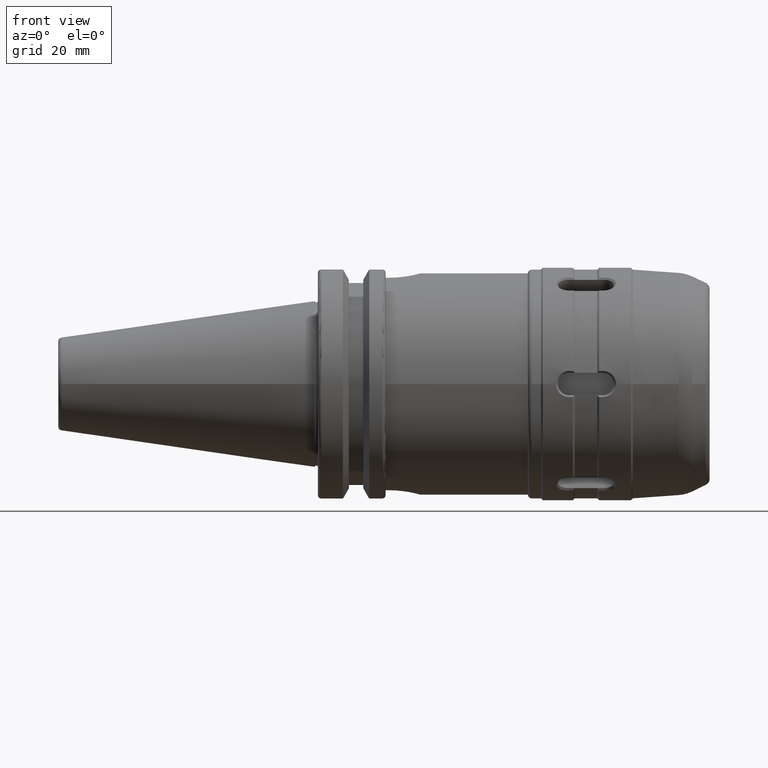
[diagram: clean part render]
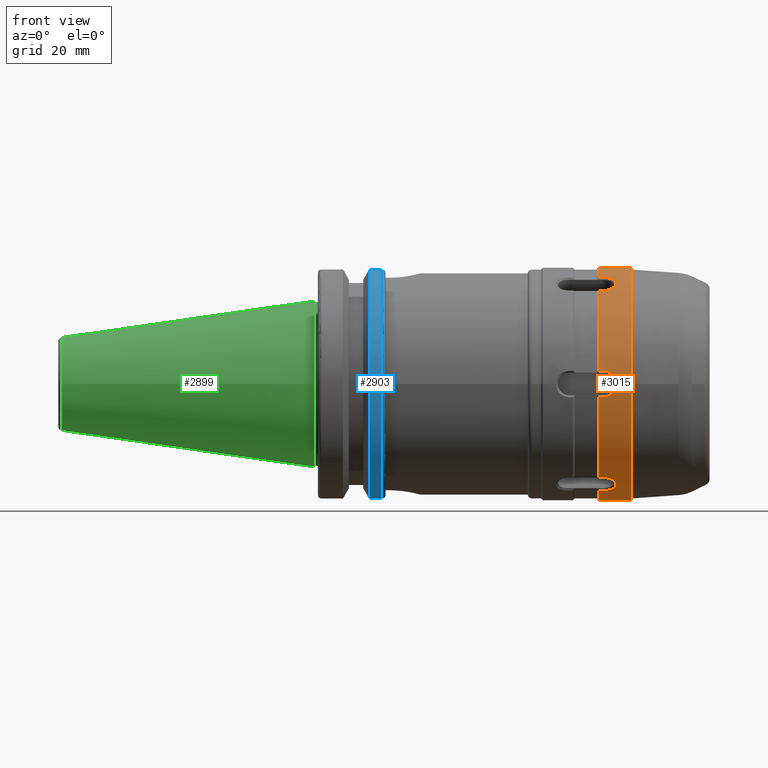
[diagram: same view with three faces highlighted in distinct colors, each labeled with its STEP entity id]
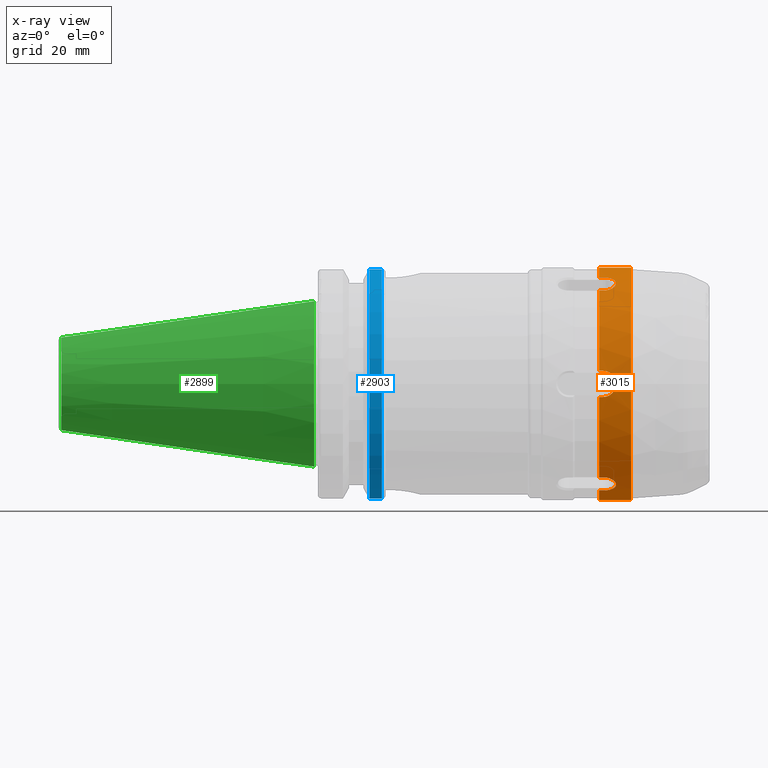
[diagram: x-ray of the same camera — body ghosted, the three highlighted faces saturated]
A machine part, front view with three faces highlighted in distinct colors.
The next image is the same camera in x-ray (body ghosted, the three faces saturated) — at least one of them is partly hidden behind the body in this view.
Their STEP definitions:

[orange] entity #3015 — the highlighted cylindrical surface (bore or boss wall) has radius 31 mm, axis along (1, 0, 0).
#394=FACE_OUTER_BOUND('',#580,.T.);
#580=EDGE_LOOP('',(#2691,#2692,#2693,#2694,#2695,#2696,#2697,#2698,#2699,
#2700,#2701,#2702,#2703,#2704,#2705,#2706,#2707,#2708,#2709,#2710,#2711,
#2712,#2713,#2714,#2715,#2716,#2717,#2718));
#672=CIRCLE('',#3244,31.);
#677=CIRCLE('',#3259,31.);
#683=CIRCLE('',#3275,31.);
#689=CIRCLE('',#3291,31.);
#695=CIRCLE('',#3307,31.);
#701=CIRCLE('',#3326,31.);
#708=CIRCLE('',#3351,31.);
#816=LINE('',#4736,#1019);
#818=LINE('',#4824,#1021);
#836=LINE('',#4994,#1039);
#838=LINE('',#5082,#1041);
#856=LINE('',#5234,#1059);
#858=LINE('',#5327,#1061);
#876=LINE('',#5484,#1079);
#878=LINE('',#5590,#1081);
#896=LINE('',#5742,#1099);
#898=LINE('',#5830,#1101);
#921=LINE('',#6035,#1124);
#923=LINE('',#6136,#1126);
#935=LINE('',#6231,#1138);
#1019=VECTOR('',#3740,10.);
#1021=VECTOR('',#3744,10.);
#1039=VECTOR('',#3792,10.);
#1041=VECTOR('',#3796,10.);
#1059=VECTOR('',#3844,10.);
#1061=VECTOR('',#3848,10.);
#1079=VECTOR('',#3896,10.);
#1081=VECTOR('',#3900,10.);
#1099=VECTOR('',#3948,10.);
#1101=VECTOR('',#3952,10.);
#1124=VECTOR('',#4043,10.);
#1126=VECTOR('',#4047,10.);
#1138=VECTOR('',#4081,31.);
#1170=B_SPLINE_CURVE_WITH_KNOTS('',3,(#4792,#4793,#4794,#4795,#4796,#4797,
#4798,#4799,#4800,#4801,#4802,#4803,#4804),.UNSPECIFIED.,.F.,.F.,(4,1,1,
1,1,1,1,1,1,1,4),(-4.79426917206454E-16,0.129236548668661,0.258473097337323,
0.290782234504488,0.323091371671653,0.355400508838819,0.516946194674646,
0.646182743343307,0.710801017677638,0.775419292011969,0.90465584068063),
 .UNSPECIFIED.);
#1174=B_SPLINE_CURVE_WITH_KNOTS('',3,(#5050,#5051,#5052,#5053,#5054,#5055,
#5056,#5057,#5058,#5059,#5060,#5061,#5062),.UNSPECIFIED.,.F.,.F.,(4,1,1,
1,1,1,1,1,1,1,4),(-4.30211422042248E-16,0.129236548668661,0.258473097337323,
0.290782234504488,0.323091371671654,0.355400508838819,0.516946194674646,
0.646182743343308,0.710801017677639,0.77541929201197,0.904655840680631),
 .UNSPECIFIED.);
#1178=B_SPLINE_CURVE_WITH_KNOTS('',3,(#5291,#5292,#5293,#5294,#5295,#5296,
#5297,#5298,#5299),.UNSPECIFIED.,.F.,.F.,(4,1,1,1,1,1,4),(-4.25109350697904E-17,
0.129236548668662,0.258473097337323,0.290782234504488,0.323091371671654,
0.355400508838819,0.452069356203931),.UNSPECIFIED.);
#1179=B_SPLINE_CURVE_WITH_KNOTS('',3,(#5300,#5301,#5302,#5303,#5304,#5305,
#5306,#5307),.UNSPECIFIED.,.F.,.F.,(4,1,1,1,1,4),(0.452069356203931,0.516946194674646,
0.646182743343307,0.710801017677638,0.775419292011969,0.90465584068063),
 .UNSPECIFIED.);
#1184=B_SPLINE_CURVE_WITH_KNOTS('',3,(#5552,#5553,#5554,#5555,#5556,#5557,
#5558,#5559,#5560,#5561,#5562,#5563,#5564,#5565,#5566,#5567),
 .UNSPECIFIED.,.F.,.F.,(4,1,1,1,1,1,1,1,1,1,1,1,1,4),(-9.15308593628442E-16,
0.129236548668661,0.177700254419409,0.258473097337322,0.290782234504488,
0.323091371671653,0.347323224547027,0.387709646005984,0.516946194674646,
0.581564469008977,0.605796321884351,0.646182743343307,0.775419292011969,
0.904655840680631),.UNSPECIFIED.);
#1188=B_SPLINE_CURVE_WITH_KNOTS('',3,(#5798,#5799,#5800,#5801,#5802,#5803,
#5804,#5805,#5806,#5807,#5808,#5809,#5810),.UNSPECIFIED.,.F.,.F.,(4,1,1,
1,1,1,1,1,1,1,4),(-4.44089209850063E-16,0.129236548668661,0.258473097337323,
0.290782234504488,0.323091371671653,0.355400508838819,0.516946194674646,
0.646182743343307,0.710801017677638,0.775419292011969,0.90465584068063),
 .UNSPECIFIED.);
#1193=B_SPLINE_CURVE_WITH_KNOTS('',3,(#6103,#6104,#6105,#6106,#6107,#6108,
#6109,#6110,#6111,#6112,#6113,#6114,#6115,#6116,#6117,#6118),
 .UNSPECIFIED.,.F.,.F.,(4,1,1,1,1,1,1,1,1,1,1,1,1,4),(-4.63841704051304E-16,
0.129236548668661,0.177700254419409,0.258473097337323,0.290782234504488,
0.323091371671654,0.347323224547028,0.387709646005984,0.516946194674646,
0.581564469008977,0.605796321884351,0.646182743343307,0.775419292011969,
0.904655840680631),.UNSPECIFIED.);
#1303=VERTEX_POINT('',#4727);
#1306=VERTEX_POINT('',#4734);
#1308=VERTEX_POINT('',#4790);
#1310=VERTEX_POINT('',#4820);
#1314=VERTEX_POINT('',#4837);
#1333=VERTEX_POINT('',#4985);
#1336=VERTEX_POINT('',#4992);
#1338=VERTEX_POINT('',#5048);
#1340=VERTEX_POINT('',#5078);
#1357=VERTEX_POINT('',#5225);
#1360=VERTEX_POINT('',#5232);
#1362=VERTEX_POINT('',#5288);
#1363=VERTEX_POINT('',#5290);
#1365=VERTEX_POINT('',#5323);
#1383=VERTEX_POINT('',#5475);
#1386=VERTEX_POINT('',#5482);
#1388=VERTEX_POINT('',#5550);
#1390=VERTEX_POINT('',#5586);
#1407=VERTEX_POINT('',#5733);
#1410=VERTEX_POINT('',#5740);
#1412=VERTEX_POINT('',#5796);
#1414=VERTEX_POINT('',#5826);
#1431=VERTEX_POINT('',#5978);
#1441=VERTEX_POINT('',#6033);
#1443=VERTEX_POINT('',#6101);
#1450=VERTEX_POINT('',#6229);
#1648=EDGE_CURVE('',#1306,#1303,#816,.T.);
#1650=EDGE_CURVE('',#1308,#1306,#1170,.T.);
#1653=EDGE_CURVE('',#1310,#1308,#818,.T.);
#1659=EDGE_CURVE('',#1310,#1314,#672,.T.);
#1690=EDGE_CURVE('',#1336,#1333,#836,.T.);
#1692=EDGE_CURVE('',#1338,#1336,#1174,.T.);
#1695=EDGE_CURVE('',#1340,#1338,#838,.T.);
#1697=EDGE_CURVE('',#1340,#1303,#677,.T.);
#1728=EDGE_CURVE('',#1360,#1357,#856,.T.);
#1730=EDGE_CURVE('',#1362,#1363,#1178,.T.);
#1731=EDGE_CURVE('',#1363,#1360,#1179,.T.);
#1734=EDGE_CURVE('',#1365,#1362,#858,.T.);
#1736=EDGE_CURVE('',#1365,#1333,#683,.T.);
#1768=EDGE_CURVE('',#1386,#1383,#876,.T.);
#1770=EDGE_CURVE('',#1388,#1386,#1184,.T.);
#1773=EDGE_CURVE('',#1390,#1388,#878,.T.);
#1775=EDGE_CURVE('',#1390,#1357,#689,.T.);
#1806=EDGE_CURVE('',#1410,#1407,#896,.T.);
#1808=EDGE_CURVE('',#1412,#1410,#1188,.T.);
#1811=EDGE_CURVE('',#1414,#1412,#898,.T.);
#1813=EDGE_CURVE('',#1414,#1383,#695,.T.);
#1841=EDGE_CURVE('',#1431,#1407,#701,.T.);
#1858=EDGE_CURVE('',#1441,#1314,#921,.T.);
#1860=EDGE_CURVE('',#1443,#1441,#1193,.T.);
#1862=EDGE_CURVE('',#1431,#1443,#923,.T.);
#1877=EDGE_CURVE('',#1450,#1450,#708,.T.);
#1878=EDGE_CURVE('',#1450,#1363,#935,.T.);
#2691=ORIENTED_EDGE('',*,*,#1877,.F.);
#2692=ORIENTED_EDGE('',*,*,#1878,.T.);
#2693=ORIENTED_EDGE('',*,*,#1730,.F.);
#2694=ORIENTED_EDGE('',*,*,#1734,.F.);
#2695=ORIENTED_EDGE('',*,*,#1736,.T.);
#2696=ORIENTED_EDGE('',*,*,#1690,.F.);
#2697=ORIENTED_EDGE('',*,*,#1692,.F.);
#2698=ORIENTED_EDGE('',*,*,#1695,.F.);
#2699=ORIENTED_EDGE('',*,*,#1697,.T.);
#2700=ORIENTED_EDGE('',*,*,#1648,.F.);
#2701=ORIENTED_EDGE('',*,*,#1650,.F.);
#2702=ORIENTED_EDGE('',*,*,#1653,.F.);
#2703=ORIENTED_EDGE('',*,*,#1659,.T.);
#2704=ORIENTED_EDGE('',*,*,#1858,.F.);
#2705=ORIENTED_EDGE('',*,*,#1860,.F.);
#2706=ORIENTED_EDGE('',*,*,#1862,.F.);
#2707=ORIENTED_EDGE('',*,*,#1841,.T.);
#2708=ORIENTED_EDGE('',*,*,#1806,.F.);
#2709=ORIENTED_EDGE('',*,*,#1808,.F.);
#2710=ORIENTED_EDGE('',*,*,#1811,.F.);
#2711=ORIENTED_EDGE('',*,*,#1813,.T.);
#2712=ORIENTED_EDGE('',*,*,#1768,.F.);
#2713=ORIENTED_EDGE('',*,*,#1770,.F.);
#2714=ORIENTED_EDGE('',*,*,#1773,.F.);
#2715=ORIENTED_EDGE('',*,*,#1775,.T.);
#2716=ORIENTED_EDGE('',*,*,#1728,.F.);
#2717=ORIENTED_EDGE('',*,*,#1731,.F.);
#2718=ORIENTED_EDGE('',*,*,#1878,.F.);
#2858=CYLINDRICAL_SURFACE('',#3350,31.);
#3015=ADVANCED_FACE('',(#394),#2858,.T.);
#3244=AXIS2_PLACEMENT_3D('',#4841,#3750,#3751);
#3259=AXIS2_PLACEMENT_3D('',#5085,#3800,#3801);
#3275=AXIS2_PLACEMENT_3D('',#5330,#3852,#3853);
#3291=AXIS2_PLACEMENT_3D('',#5593,#3904,#3905);
#3307=AXIS2_PLACEMENT_3D('',#5833,#3956,#3957);
#3326=AXIS2_PLACEMENT_3D('',#5979,#4008,#4009);
#3350=AXIS2_PLACEMENT_3D('',#6228,#4077,#4078);
#3351=AXIS2_PLACEMENT_3D('',#6230,#4079,#4080);
#3740=DIRECTION('',(-1.,0.,0.));
#3744=DIRECTION('',(1.,0.,0.));
#3750=DIRECTION('center_axis',(1.,0.,0.));
#3751=DIRECTION('ref_axis',(0.,0.,-1.));
#3792=DIRECTION('',(-1.,0.,0.));
#3796=DIRECTION('',(1.,0.,0.));
#3800=DIRECTION('center_axis',(1.,0.,0.));
#3801=DIRECTION('ref_axis',(0.,0.,-1.));
#3844=DIRECTION('',(-1.,0.,0.));
#3848=DIRECTION('',(1.,0.,0.));
#3852=DIRECTION('center_axis',(1.,0.,0.));
#3853=DIRECTION('ref_axis',(0.,0.,-1.));
#3896=DIRECTION('',(-1.,0.,0.));
#3900=DIRECTION('',(1.,0.,0.));
#3904=DIRECTION('center_axis',(1.,0.,0.));
#3905=DIRECTION('ref_axis',(0.,0.,-1.));
#3948=DIRECTION('',(-1.,0.,0.));
#3952=DIRECTION('',(1.,0.,0.));
#3956=DIRECTION('center_axis',(1.,0.,0.));
#3957=DIRECTION('ref_axis',(0.,0.,-1.));
#4008=DIRECTION('center_axis',(1.,0.,0.));
#4009=DIRECTION('ref_axis',(0.,0.,-1.));
#4043=DIRECTION('',(-1.,0.,0.));
#4047=DIRECTION('',(1.,0.,0.));
#4077=DIRECTION('center_axis',(1.,0.,0.));
#4078=DIRECTION('ref_axis',(0.,1.,0.));
#4079=DIRECTION('center_axis',(1.,0.,0.));
#4080=DIRECTION('ref_axis',(0.,0.,-1.));
#4081=DIRECTION('',(-1.,0.,0.));
#4727=CARTESIAN_POINT('',(19.,12.3723446382939,-28.4240230817399));
#4734=CARTESIAN_POINT('',(20.,12.3723446382939,-28.4240230817399));
#4736=CARTESIAN_POINT('',(23.25,12.3723446382939,-28.4240230817399));
#4790=CARTESIAN_POINT('',(20.,18.4297537473952,-24.9267763020085));
#4792=CARTESIAN_POINT('Ctrl Pts',(20.,18.4297537473952,-24.9267763020085));
#4793=CARTESIAN_POINT('Ctrl Pts',(20.5029228157146,18.4297537473953,-24.9267763020085));
#4794=CARTESIAN_POINT('Ctrl Pts',(21.5877952834791,18.2352630667079,-25.0723603172115));
#4795=CARTESIAN_POINT('Ctrl Pts',(22.5144800606713,17.6185890073083,-25.5110813520466));
#4796=CARTESIAN_POINT('Ctrl Pts',(22.968036745028,17.0893696410219,-25.864879199718));
#4797=CARTESIAN_POINT('Ctrl Pts',(23.1632621971757,16.7979416103726,-26.0554069401757));
#4798=CARTESIAN_POINT('Ctrl Pts',(23.5175806085599,16.0580406128322,-26.5261665526475));
#4799=CARTESIAN_POINT('Ctrl Pts',(23.604018443532,14.9414216909213,-27.1825507082049));
#4800=CARTESIAN_POINT('Ctrl Pts',(22.9289668314812,13.7043187996013,-27.8115866146832));
#4801=CARTESIAN_POINT('Ctrl Pts',(22.2143776434643,13.0641610424819,-28.1141868698291));
#4802=CARTESIAN_POINT('Ctrl Pts',(21.3145626833517,12.533333835669,-28.3556214096196));
#4803=CARTESIAN_POINT('Ctrl Pts',(20.5029228157146,12.3723446382936,-28.42402308174));
#4804=CARTESIAN_POINT('Ctrl Pts',(20.,12.3723446382936,-28.42402308174));
#4820=CARTESIAN_POINT('',(19.,18.429753747395,-24.9267763020086));
#4824=CARTESIAN_POINT('',(23.25,18.429753747395,-24.9267763020087));
#4837=CARTESIAN_POINT('',(19.,30.8020983856889,-3.49724677973123));
#4841=CARTESIAN_POINT('Origin',(19.,0.,0.));
#4985=CARTESIAN_POINT('',(19.,-18.429753747395,-24.9267763020086));
#4992=CARTESIAN_POINT('',(20.,-18.429753747395,-24.9267763020086));
#4994=CARTESIAN_POINT('',(23.25,-18.429753747395,-24.9267763020086));
#5048=CARTESIAN_POINT('',(20.,-12.3723446382936,-28.42402308174));
#5050=CARTESIAN_POINT('Ctrl Pts',(20.,-12.3723446382936,-28.42402308174));
#5051=CARTESIAN_POINT('Ctrl Pts',(20.5029228157145,-12.3723446382936,-28.42402308174));
#5052=CARTESIAN_POINT('Ctrl Pts',(21.5877951473502,-12.5956691601346,-28.328381350772));
#5053=CARTESIAN_POINT('Ctrl Pts',(22.5144797988443,-13.2839496154584,-28.0136865316298));
#5054=CARTESIAN_POINT('Ctrl Pts',(22.968036420487,-13.854957138253,-27.7322680800237));
#5055=CARTESIAN_POINT('Ctrl Pts',(23.1632618722387,-14.1656730206463,-27.5751478699939));
#5056=CARTESIAN_POINT('Ctrl Pts',(23.5175802575801,-14.943313265472,-27.1697546346291));
#5057=CARTESIAN_POINT('Ctrl Pts',(23.6040181756343,-16.0700683378415,-26.5309262184185));
#5058=CARTESIAN_POINT('Ctrl Pts',(22.9289666781511,-17.2333809886465,-25.7740815787084));
#5059=CARTESIAN_POINT('Ctrl Pts',(22.2143774965094,-17.8155194029929,-25.3709888132998));
#5060=CARTESIAN_POINT('Ctrl Pts',(21.3145625598454,-18.2900214752124,-25.0319962259454));
#5061=CARTESIAN_POINT('Ctrl Pts',(20.5029228157146,-18.4297537473953,-24.9267763020084));
#5062=CARTESIAN_POINT('Ctrl Pts',(20.,-18.4297537473953,-24.9267763020084));
#5078=CARTESIAN_POINT('',(19.,-12.3723446382939,-28.4240230817399));
#5082=CARTESIAN_POINT('',(23.25,-12.3723446382939,-28.4240230817399));
#5085=CARTESIAN_POINT('Origin',(19.,0.,0.));
#5225=CARTESIAN_POINT('',(19.,-30.8020983856889,3.49724677973124));
#5232=CARTESIAN_POINT('',(20.,-30.8020983856889,3.49724677973124));
#5234=CARTESIAN_POINT('',(23.25,-30.8020983856889,3.49724677973124));
#5288=CARTESIAN_POINT('',(20.,-30.7988564698903,-3.49364528717398));
#5290=CARTESIAN_POINT('',(23.5044271023604,-30.997335359307,-7.89755840710092E-6));
#5291=CARTESIAN_POINT('Ctrl Pts',(20.,-30.7984200751448,-3.49316048975002));
#5292=CARTESIAN_POINT('Ctrl Pts',(20.5023873964774,-30.7984200751448,-3.49316048975002));
#5293=CARTESIAN_POINT('Ctrl Pts',(21.5861048058522,-30.8271952342285,-3.25214438863611));
#5294=CARTESIAN_POINT('Ctrl Pts',(22.5116803735453,-30.8986486089163,-2.49951048234058));
#5295=CARTESIAN_POINT('Ctrl Pts',(22.9646550805161,-30.9403446546229,-1.86503299184228));
#5296=CARTESIAN_POINT('Ctrl Pts',(23.1596237993936,-30.9595896085211,-1.51780299249917));
#5297=CARTESIAN_POINT('Ctrl Pts',(23.4119595254712,-30.9864424217746,-0.893750767376036));
#5298=CARTESIAN_POINT('Ctrl Pts',(23.5024164192177,-30.9963149183891,-0.383184601653545));
#5299=CARTESIAN_POINT('Ctrl Pts',(23.503482979437,-30.9965113974383,-7.90593583607779E-6));
#5300=CARTESIAN_POINT('Ctrl Pts',(23.5075996652101,-31.0006214462021,-7.24048902481234E-6));
#5301=CARTESIAN_POINT('Ctrl Pts',(23.5083167025128,-31.0007536151222,0.257484054806717));
#5302=CARTESIAN_POINT('Ctrl Pts',(23.4204103085605,-30.9914201910968,1.02858979631893));
#5303=CARTESIAN_POINT('Ctrl Pts',(22.9289705458122,-30.9377005806742,2.03750861178463));
#5304=CARTESIAN_POINT('Ctrl Pts',(22.2143812021134,-30.8796811458087,2.74320088358733));
#5305=CARTESIAN_POINT('Ctrl Pts',(21.3145656746038,-30.8233559299778,3.32362736154332));
#5306=CARTESIAN_POINT('Ctrl Pts',(20.5029228157146,-30.8020983856889,3.49724677973154));
#5307=CARTESIAN_POINT('Ctrl Pts',(20.,-30.8020983856889,3.49724677973154));
#5323=CARTESIAN_POINT('',(19.,-30.8020983856889,-3.49724677973122));
#5327=CARTESIAN_POINT('',(23.25,-30.8020983856889,-3.49724677973122));
#5330=CARTESIAN_POINT('Origin',(19.,0.,0.));
#5475=CARTESIAN_POINT('',(19.,-12.3723446382939,28.4240230817399));
#5482=CARTESIAN_POINT('',(20.,-12.3723446382939,28.4240230817399));
#5484=CARTESIAN_POINT('',(23.25,-12.3723446382939,28.4240230817399));
#5550=CARTESIAN_POINT('',(20.,-18.4297537473953,24.9267763020085));
#5552=CARTESIAN_POINT('Ctrl Pts',(20.,-18.4297537473953,24.9267763020085));
#5553=CARTESIAN_POINT('Ctrl Pts',(20.5029228157146,-18.4297537473953,24.9267763020085));
#5554=CARTESIAN_POINT('Ctrl Pts',(21.2426574856242,-18.3028629878444,25.0221543612209));
#5555=CARTESIAN_POINT('Ctrl Pts',(22.1635581155774,-17.8516308233136,25.3454853188092));
#5556=CARTESIAN_POINT('Ctrl Pts',(22.6208857714583,-17.4946975807774,25.5937527401457));
#5557=CARTESIAN_POINT('Ctrl Pts',(22.9651500548897,-17.095490106414,25.8609181910697));
#5558=CARTESIAN_POINT('Ctrl Pts',(23.1428657929285,-16.8266791349524,26.0365086451568));
#5559=CARTESIAN_POINT('Ctrl Pts',(23.3018465306417,-16.5177154114914,26.2339284757337));
#5560=CARTESIAN_POINT('Ctrl Pts',(23.5312452671878,-15.8610524894087,26.6421960640706));
#5561=CARTESIAN_POINT('Ctrl Pts',(23.5307899137523,-15.0595404376844,27.1049267362121));
#5562=CARTESIAN_POINT('Ctrl Pts',(23.236705488634,-14.2953814759025,27.5089029008976));
#5563=CARTESIAN_POINT('Ctrl Pts',(22.9826852067557,-13.8755884428638,27.7219827163123));
#5564=CARTESIAN_POINT('Ctrl Pts',(22.5394817180408,-13.301103610346,28.0060187276989));
#5565=CARTESIAN_POINT('Ctrl Pts',(21.5921074832652,-12.5995098916724,28.3266054975482));
#5566=CARTESIAN_POINT('Ctrl Pts',(20.5029228157146,-12.3723446382936,28.42402308174));
#5567=CARTESIAN_POINT('Ctrl Pts',(20.,-12.3723446382936,28.42402308174));
#5586=CARTESIAN_POINT('',(19.,-18.429753747395,24.9267763020086));
#5590=CARTESIAN_POINT('',(23.25,-18.429753747395,24.9267763020086));
#5593=CARTESIAN_POINT('Origin',(19.,0.,0.));
#5733=CARTESIAN_POINT('',(19.,18.429753747395,24.9267763020086));
#5740=CARTESIAN_POINT('',(20.,18.429753747395,24.9267763020086));
#5742=CARTESIAN_POINT('',(23.25,18.429753747395,24.9267763020086));
#5796=CARTESIAN_POINT('',(20.,12.3723446382936,28.42402308174));
#5798=CARTESIAN_POINT('Ctrl Pts',(20.,12.3723446382936,28.42402308174));
#5799=CARTESIAN_POINT('Ctrl Pts',(20.5029228157146,12.3723446382936,28.42402308174));
#5800=CARTESIAN_POINT('Ctrl Pts',(21.5877951473502,12.5956691601346,28.3283813507721));
#5801=CARTESIAN_POINT('Ctrl Pts',(22.5144797988443,13.2839496154584,28.0136865316298));
#5802=CARTESIAN_POINT('Ctrl Pts',(22.968036420487,13.854957138253,27.7322680800237));
#5803=CARTESIAN_POINT('Ctrl Pts',(23.1632618722387,14.1656730206463,27.575147869994));
#5804=CARTESIAN_POINT('Ctrl Pts',(23.5175802575801,14.9433132654721,27.1697546346291));
#5805=CARTESIAN_POINT('Ctrl Pts',(23.6040181756343,16.0700683378415,26.5309262184185));
#5806=CARTESIAN_POINT('Ctrl Pts',(22.9289666781511,17.2333809886465,25.7740815787084));
#5807=CARTESIAN_POINT('Ctrl Pts',(22.2143774965094,17.8155194029929,25.3709888132998));
#5808=CARTESIAN_POINT('Ctrl Pts',(21.3145625598454,18.2900214752123,25.0319962259455));
#5809=CARTESIAN_POINT('Ctrl Pts',(20.5029228157146,18.4297537473953,24.9267763020084));
#5810=CARTESIAN_POINT('Ctrl Pts',(20.,18.4297537473953,24.9267763020084));
#5826=CARTESIAN_POINT('',(19.,12.3723446382939,28.4240230817399));
#5830=CARTESIAN_POINT('',(23.25,12.3723446382939,28.4240230817399));
#5833=CARTESIAN_POINT('Origin',(19.,0.,0.));
#5978=CARTESIAN_POINT('',(19.,30.8020983856889,3.49724677973122));
#5979=CARTESIAN_POINT('Origin',(19.,0.,0.));
#6033=CARTESIAN_POINT('',(20.,30.8020983856889,-3.49724677973123));
#6035=CARTESIAN_POINT('',(23.25,30.8020983856889,-3.49724677973123));
#6101=CARTESIAN_POINT('',(20.,30.8020983856889,3.49724677973154));
#6103=CARTESIAN_POINT('Ctrl Pts',(20.,30.8020983856889,3.49724677973154));
#6104=CARTESIAN_POINT('Ctrl Pts',(20.5029228157146,30.8020983856889,3.49724677973154));
#6105=CARTESIAN_POINT('Ctrl Pts',(21.242659825421,30.8212531947606,3.3396694995993));
#6106=CARTESIAN_POINT('Ctrl Pts',(22.1635603193655,30.8756498890201,2.78722527496397));
#6107=CARTESIAN_POINT('Ctrl Pts',(22.6208888427849,30.9121892566402,2.35397898688947));
#6108=CARTESIAN_POINT('Ctrl Pts',(22.9651532494347,30.9439575953616,1.87467251580464));
#6109=CARTESIAN_POINT('Ctrl Pts',(23.1428691094941,30.9616179178723,1.55408035707905));
#6110=CARTESIAN_POINT('Ctrl Pts',(23.3018498759544,30.9781066509846,1.18780010766055));
#6111=CARTESIAN_POINT('Ctrl Pts',(23.5312489070119,31.0033453243718,0.414980130115157));
#6112=CARTESIAN_POINT('Ctrl Pts',(23.5307938508956,31.0033259372126,-0.510512266804724));
#6113=CARTESIAN_POINT('Ctrl Pts',(23.2367091987079,30.9711000876596,-1.37428089697105));
#6114=CARTESIAN_POINT('Ctrl Pts',(22.9826891146234,30.9457361333988,-1.84437194817132));
#6115=CARTESIAN_POINT('Ctrl Pts',(22.539484373904,30.9044759491005,-2.48391043469196));
#6116=CARTESIAN_POINT('Ctrl Pts',(21.5921093327473,30.831315372792,-3.25180261688938));
#6117=CARTESIAN_POINT('Ctrl Pts',(20.5029228157146,30.8020983856889,-3.49724677973154));
#6118=CARTESIAN_POINT('Ctrl Pts',(20.,30.8020983856889,-3.49724677973154));
#6136=CARTESIAN_POINT('',(23.25,30.8020983856889,3.49724677973122));
#6228=CARTESIAN_POINT('Origin',(23.25,0.,0.));
#6229=CARTESIAN_POINT('',(27.5,-31.,-3.7964050773568E-15));
#6230=CARTESIAN_POINT('Origin',(27.5,0.,0.));
#6231=CARTESIAN_POINT('',(23.25,-31.,-3.7964050773568E-15));

[blue] entity #2903 — the highlighted cylindrical surface (partial cylindrical patch) has radius 31.75 mm, axis along (1, 0, 0).
#282=FACE_OUTER_BOUND('',#465,.T.);
#465=EDGE_LOOP('',(#2138,#2139,#2140,#2141));
#637=CIRCLE('',#3163,31.75);
#650=CIRCLE('',#3192,31.75);
#804=LINE('',#4643,#1007);
#805=LINE('',#4649,#1008);
#1007=VECTOR('',#3628,10.);
#1008=VECTOR('',#3631,10.);
#1245=VERTEX_POINT('',#4441);
#1246=VERTEX_POINT('',#4450);
#1290=VERTEX_POINT('',#4642);
#1291=VERTEX_POINT('',#4648);
#1549=EDGE_CURVE('',#1245,#1246,#637,.T.);
#1610=EDGE_CURVE('',#1246,#1290,#804,.T.);
#1612=EDGE_CURVE('',#1291,#1245,#805,.T.);
#1613=EDGE_CURVE('',#1291,#1290,#650,.T.);
#2138=ORIENTED_EDGE('',*,*,#1549,.F.);
#2139=ORIENTED_EDGE('',*,*,#1612,.F.);
#2140=ORIENTED_EDGE('',*,*,#1613,.T.);
#2141=ORIENTED_EDGE('',*,*,#1610,.F.);
#2831=CYLINDRICAL_SURFACE('',#3191,31.75);
#2903=ADVANCED_FACE('',(#282),#2831,.T.);
#3163=AXIS2_PLACEMENT_3D('',#4451,#3543,#3544);
#3191=AXIS2_PLACEMENT_3D('',#4647,#3629,#3630);
#3192=AXIS2_PLACEMENT_3D('',#4650,#3632,#3633);
#3543=DIRECTION('center_axis',(1.,0.,0.));
#3544=DIRECTION('ref_axis',(0.,-1.,1.60812264967664E-16));
#3628=DIRECTION('',(-1.,0.,0.));
#3629=DIRECTION('center_axis',(1.,0.,0.));
#3630=DIRECTION('ref_axis',(0.,-1.,1.22464679914735E-16));
#3631=DIRECTION('',(1.,0.,0.));
#3632=DIRECTION('center_axis',(1.,0.,0.));
#3633=DIRECTION('ref_axis',(0.,0.,-1.));
#4441=CARTESIAN_POINT('',(18.05,-8.67204822802685,30.5427254764662));
#4450=CARTESIAN_POINT('',(18.05,-8.67204822802685,-30.5427254764662));
#4451=CARTESIAN_POINT('Origin',(18.05,0.,0.));
#4642=CARTESIAN_POINT('',(14.7021667690756,-8.67204822802685,-30.5427254764662));
#4643=CARTESIAN_POINT('',(16.8760833845378,-8.67204822802685,-30.5427254764662));
#4647=CARTESIAN_POINT('Origin',(16.8760833845378,0.,0.));
#4648=CARTESIAN_POINT('',(14.7021667690756,-8.67204822802685,30.5427254764662));
#4649=CARTESIAN_POINT('',(16.8760833845378,-8.67204822802685,30.5427254764662));
#4650=CARTESIAN_POINT('Origin',(14.7021667690756,0.,0.));

[green] entity #2899 — the highlighted conical surface has half-angle 8.297 deg.
#120=CONICAL_SURFACE('',#3186,17.2484375,0.144812498238939);
#278=FACE_OUTER_BOUND('',#461,.T.);
#461=EDGE_LOOP('',(#2107,#2108,#2109,#2110,#2111));
#644=CIRCLE('',#3180,12.3966635780937);
#645=CIRCLE('',#3181,12.3966635780937);
#649=CIRCLE('',#3187,22.225);
#796=LINE('',#4611,#999);
#999=VECTOR('',#3614,17.2484375);
#1277=VERTEX_POINT('',#4598);
#1278=VERTEX_POINT('',#4599);
#1281=VERTEX_POINT('',#4609);
#1592=EDGE_CURVE('',#1277,#1278,#644,.T.);
#1593=EDGE_CURVE('',#1278,#1277,#645,.T.);
#1597=EDGE_CURVE('',#1281,#1281,#649,.T.);
#1598=EDGE_CURVE('',#1281,#1278,#796,.T.);
#2107=ORIENTED_EDGE('',*,*,#1597,.F.);
#2108=ORIENTED_EDGE('',*,*,#1598,.T.);
#2109=ORIENTED_EDGE('',*,*,#1592,.F.);
#2110=ORIENTED_EDGE('',*,*,#1593,.F.);
#2111=ORIENTED_EDGE('',*,*,#1598,.F.);
#2899=ADVANCED_FACE('',(#278),#120,.T.);
#3180=AXIS2_PLACEMENT_3D('',#4600,#3598,#3599);
#3181=AXIS2_PLACEMENT_3D('',#4601,#3600,#3601);
#3186=AXIS2_PLACEMENT_3D('',#4608,#3610,#3611);
#3187=AXIS2_PLACEMENT_3D('',#4610,#3612,#3613);
#3598=DIRECTION('center_axis',(-1.,0.,0.));
#3599=DIRECTION('ref_axis',(0.,-1.,3.06161699786838E-17));
#3600=DIRECTION('center_axis',(-1.,0.,0.));
#3601=DIRECTION('ref_axis',(0.,-1.,3.06161699786838E-17));
#3610=DIRECTION('center_axis',(1.,0.,0.));
#3611=DIRECTION('ref_axis',(0.,1.,0.));
#3612=DIRECTION('center_axis',(1.,0.,0.));
#3613=DIRECTION('ref_axis',(0.,0.,-1.));
#3614=DIRECTION('',(-0.989532981063282,0.144306893071729,1.76724974695192E-17));
#4598=CARTESIAN_POINT('',(-67.3943068930717,-1.5181534371019E-15,12.3966635780937));
#4599=CARTESIAN_POINT('',(-67.3943068930718,-12.3966635780937,-1.5181534371019E-15));
#4600=CARTESIAN_POINT('Origin',(-67.3943068930717,0.,-1.89769179637738E-15));
#4601=CARTESIAN_POINT('Origin',(-67.3943068930717,0.,-1.89769179637738E-15));
#4608=CARTESIAN_POINT('Origin',(-34.125,0.,0.));
#4609=CARTESIAN_POINT('',(0.,-22.225,-2.72177751110499E-15));
#4610=CARTESIAN_POINT('Origin',(0.,0.,0.));
#4611=CARTESIAN_POINT('',(-34.125,-17.2484375,-2.11232437746682E-15));